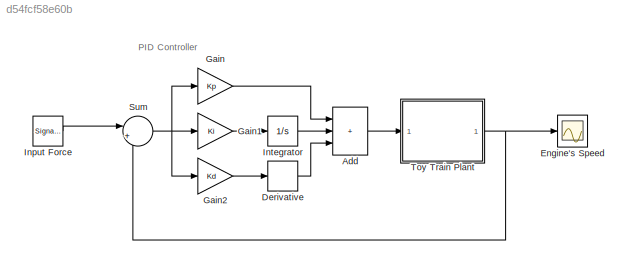
MODEL slx_d54fcf58e60b
KIND model
CONFIG AbsTol = auto
CONFIG EnableMultiTasking = off
CONFIG FixedStep = auto
CONFIG InitFcn = init
CONFIG MaxStep = auto
CONFIG MinStep = auto
CONFIG RelTol = 1e-3
CONFIG SampleTimeConstraint = Unconstrained
CONFIG SolverName = VariableStepAuto
CONFIG StartTime = 0.0
CONFIG StopTime = 1000
BLOCK [Sum] Add
  IconShape = rectangular
  Inputs = +++
BLOCK [Derivative] Derivative
BLOCK [Scope] Engine's Speed
  Floating = off
  NumInputPorts = 1
  ScopeSpecificationString = Simulink.scopes.TimeScopeBlockCfg('CurrentConfiguration', extmgr.ConfigurationSet(extmgr.Configuration('Core','General UI',true,'FigureColor',[1 1 1]),extmgr.Configuration('Core','Source UI',true),extmgr.Configuration('Sources','WiredSimulink',true),extmgr.Configuration('Visuals','Time Domain',true,'SerializedDisplays',{struct('MinYLimReal','-1.40088','MaxYLimReal','1.34074','YLabelReal','Speed','...<+1608ch>
BLOCK [Gain] Gain
  Gain = Kp
BLOCK [Gain] Gain1
  Gain = Ki
BLOCK [Gain] Gain2
  Gain = Kd
BLOCK [SignalGenerator] Input Force
  Amplitude = -1
  Frequency = 0.001
  WaveForm = square
BLOCK [Integrator] Integrator
BLOCK [Sum] Sum
  Inputs = |+-
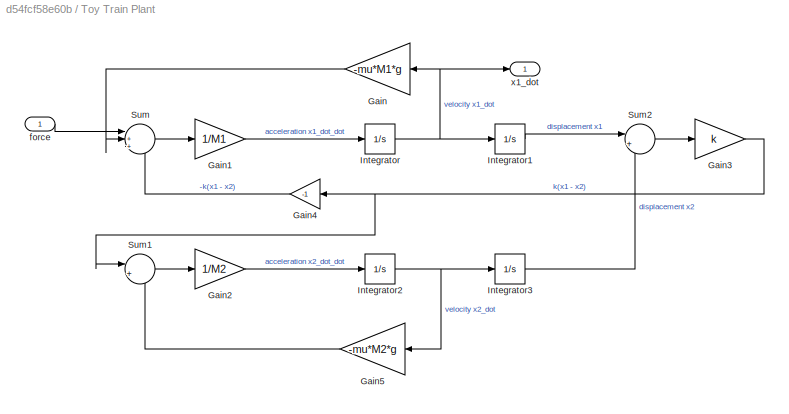
BLOCK [SubSystem] Toy Train Plant
BLOCK [Gain] Toy Train Plant/Gain
  Gain = -mu*M1*g
  NameLocation = top
BLOCK [Gain] Toy Train Plant/Gain1
  Gain = 1/M1
BLOCK [Gain] Toy Train Plant/Gain2
  Gain = 1/M2
BLOCK [Gain] Toy Train Plant/Gain3
  Gain = k
BLOCK [Gain] Toy Train Plant/Gain4
  Gain = -1
  NameLocation = top
BLOCK [Gain] Toy Train Plant/Gain5
  Gain = -mu*M2*g
  NameLocation = top
BLOCK [Integrator] Toy Train Plant/Integrator
BLOCK [Integrator] Toy Train Plant/Integrator1
BLOCK [Integrator] Toy Train Plant/Integrator2
BLOCK [Integrator] Toy Train Plant/Integrator3
BLOCK [Sum] Toy Train Plant/Sum
  Inputs = |+++
BLOCK [Sum] Toy Train Plant/Sum1
  Inputs = |++
BLOCK [Sum] Toy Train Plant/Sum2
  Inputs = |+-
BLOCK [Inport] Toy Train Plant/force
BLOCK [Outport] Toy Train Plant/x1_dot
ANNOTATION (root): PID Controller
LINE Add:1 -> Toy Train Plant:1
LINE Derivative:1 -> Add:3
LINE Gain1:1 -> Integrator:1
LINE Gain2:1 -> Derivative:1
LINE Gain:1 -> Add:1
LINE Input Force:1 -> Sum:1
LINE Integrator:1 -> Add:2
NET Sum:1 -> Gain1:1, Gain2:1, Gain:1
LINE Toy Train Plant/Gain1:1 -> Toy Train Plant/Integrator:1
LINE Toy Train Plant/Gain2:1 -> Toy Train Plant/Integrator2:1
NET Toy Train Plant/Gain3:1 -> Toy Train Plant/Gain4:1, Toy Train Plant/Sum1:1
LINE Toy Train Plant/Gain4:1 -> Toy Train Plant/Sum:3
LINE Toy Train Plant/Gain5:1 -> Toy Train Plant/Sum1:2
LINE Toy Train Plant/Gain:1 -> Toy Train Plant/Sum:2
LINE Toy Train Plant/Integrator1:1 -> Toy Train Plant/Sum2:1
NET Toy Train Plant/Integrator2:1 -> Toy Train Plant/Gain5:1, Toy Train Plant/Integrator3:1
LINE Toy Train Plant/Integrator3:1 -> Toy Train Plant/Sum2:2
NET Toy Train Plant/Integrator:1 -> Toy Train Plant/Gain:1, Toy Train Plant/Integrator1:1, Toy Train Plant/x1_dot:1
LINE Toy Train Plant/Sum1:1 -> Toy Train Plant/Gain2:1
LINE Toy Train Plant/Sum2:1 -> Toy Train Plant/Gain3:1
LINE Toy Train Plant/Sum:1 -> Toy Train Plant/Gain1:1
LINE Toy Train Plant/force:1 -> Toy Train Plant/Sum:1
NET Toy Train Plant:1 -> Engine's Speed:1, Sum:2
note: NET lines group one-source signal fan-out (src -> all destinations, sorted); 1:1 wires keep LINE
